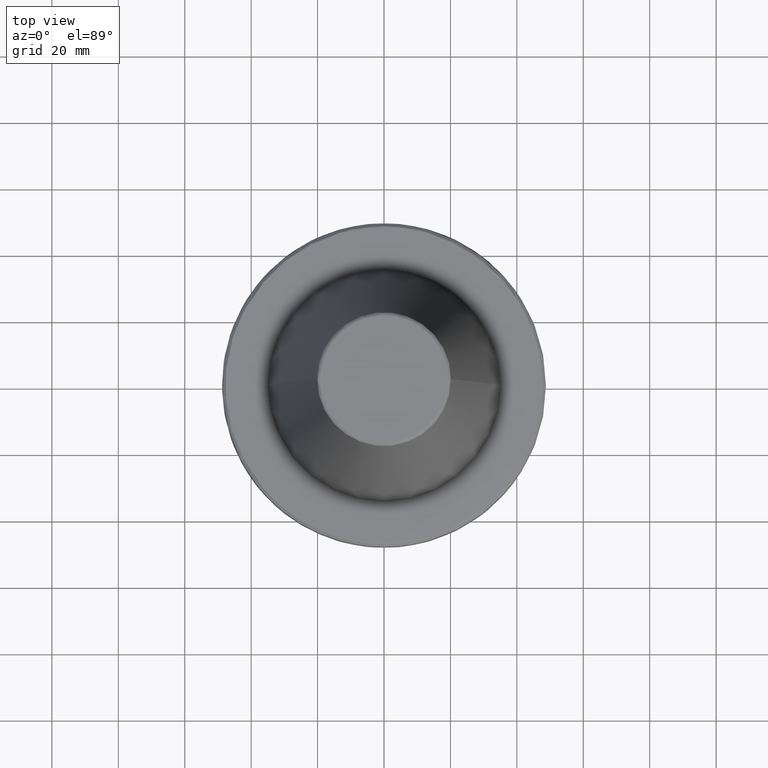
[diagram: clean part render]
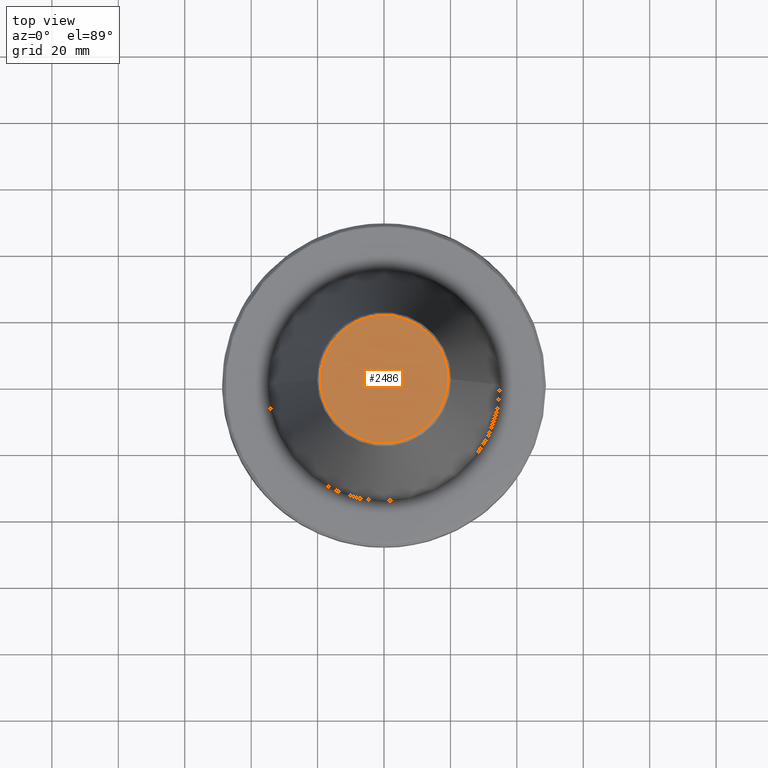
[diagram: same view with one face highlighted and labeled with its STEP entity id]
A machine part, top view. The second image highlights one B-rep face of the part: STEP entity #2486.
In plain terms, the highlighted planar face has unit normal (0, 0, 1).
Its self-contained STEP definition (entity closure, byte-faithful):
#24 = CARTESIAN_POINT ( 'NONE',  ( 19.22157500054538900, -38.44315000109077100, 101.7500000000000000 ) ) ;
#232 = VERTEX_POINT ( 'NONE', #1515 ) ;
#531 = CARTESIAN_POINT ( 'NONE',  ( -19.22157500054538900, -38.44315000109077100, 101.7500000000000000 ) ) ;
#775 =( BOUNDED_CURVE ( )  B_SPLINE_CURVE ( 3, ( #2794, #1358, #1198, #1186 ),
 .UNSPECIFIED., .F., .F. ) 
 B_SPLINE_CURVE_WITH_KNOTS ( ( 4, 4 ),
 ( 0.0000000000000000000, 1.000000000000000000 ),
 .UNSPECIFIED. ) 
 CURVE ( )  GEOMETRIC_REPRESENTATION_ITEM ( )  RATIONAL_B_SPLINE_CURVE ( ( 1.000000000000000000, 0.3333333333333333700, 0.3333333333333333700, 1.000000000000000000 ) ) 
 REPRESENTATION_ITEM ( '' )  );
#917 = EDGE_CURVE ( 'NONE', #232, #1529, #775, .T. ) ;
#1184 = ORIENTED_EDGE ( 'NONE', *, *, #2490, .F. ) ;
#1186 = CARTESIAN_POINT ( 'NONE',  ( 19.22157500054538900, 0.0000000000000000000, 101.7500000000000000 ) ) ;
#1198 = CARTESIAN_POINT ( 'NONE',  ( 19.22157500054538900, 38.44315000109077100, 101.7500000000000000 ) ) ;
#1290 = EDGE_LOOP ( 'NONE', ( #1583, #1184 ) ) ;
#1300 = AXIS2_PLACEMENT_3D ( 'NONE', #1999, #2891, #1543 ) ;
#1358 = CARTESIAN_POINT ( 'NONE',  ( -19.22157500054538600, 38.44315000109077100, 101.7500000000000000 ) ) ;
#1515 = CARTESIAN_POINT ( 'NONE',  ( -19.22157500054538900, 2.378200593091449400E-015, 101.7500000000000000 ) ) ;
#1529 = VERTEX_POINT ( 'NONE', #3080 ) ;
#1543 = DIRECTION ( 'NONE',  ( 1.000000000000000000, 0.0000000000000000000, -0.0000000000000000000 ) ) ;
#1583 = ORIENTED_EDGE ( 'NONE', *, *, #917, .F. ) ;
#1776 = CARTESIAN_POINT ( 'NONE',  ( 19.22157500054538900, 0.0000000000000000000, 101.7500000000000000 ) ) ;
#1999 = CARTESIAN_POINT ( 'NONE',  ( 0.0000000000000000000, 0.0000000000000000000, 101.7500000000000000 ) ) ;
#2037 = FACE_OUTER_BOUND ( 'NONE', #1290, .T. ) ;
#2211 = PLANE ( 'NONE',  #1300 ) ;
#2219 = CARTESIAN_POINT ( 'NONE',  ( -19.22157500054538900, 2.378200593091449400E-015, 101.7500000000000000 ) ) ;
#2336 =( BOUNDED_CURVE ( )  B_SPLINE_CURVE ( 3, ( #1776, #24, #531, #2219 ),
 .UNSPECIFIED., .F., .T. ) 
 B_SPLINE_CURVE_WITH_KNOTS ( ( 4, 4 ),
 ( 0.0000000000000000000, 1.000000000000000000 ),
 .UNSPECIFIED. ) 
 CURVE ( )  GEOMETRIC_REPRESENTATION_ITEM ( )  RATIONAL_B_SPLINE_CURVE ( ( 1.000000000000000000, 0.3333333333333333700, 0.3333333333333333700, 1.000000000000000000 ) ) 
 REPRESENTATION_ITEM ( '' )  );
#2486 = ADVANCED_FACE ( 'NONE', ( #2037 ), #2211, .T. ) ;
#2490 = EDGE_CURVE ( 'NONE', #1529, #232, #2336, .T. ) ;
#2794 = CARTESIAN_POINT ( 'NONE',  ( -19.22157500054538900, 2.378200593091449400E-015, 101.7500000000000000 ) ) ;
#2891 = DIRECTION ( 'NONE',  ( 0.0000000000000000000, 0.0000000000000000000, 1.000000000000000000 ) ) ;
#3080 = CARTESIAN_POINT ( 'NONE',  ( 19.22157500054538900, 0.0000000000000000000, 101.7500000000000000 ) ) ;